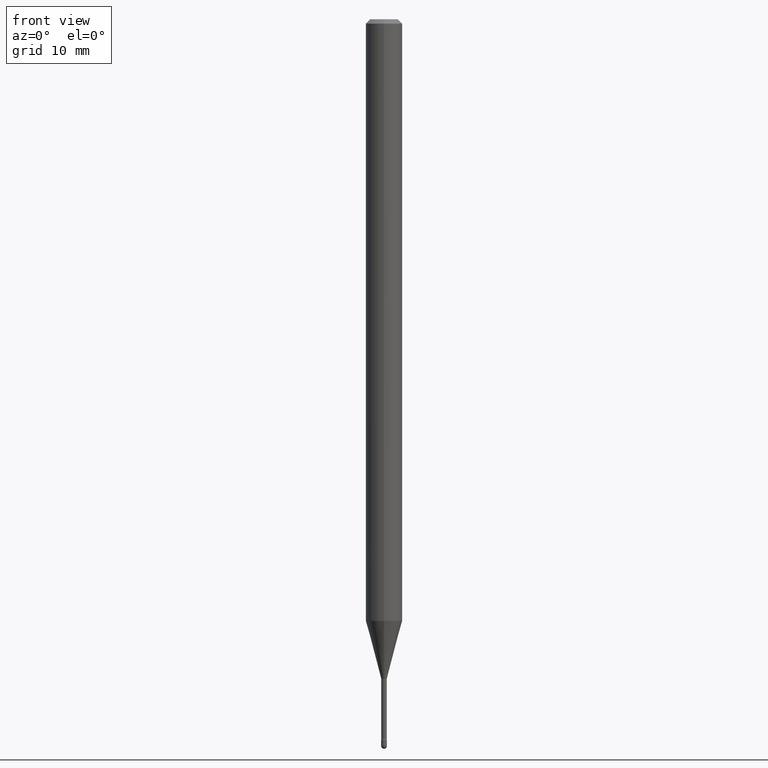
[diagram: clean part render]
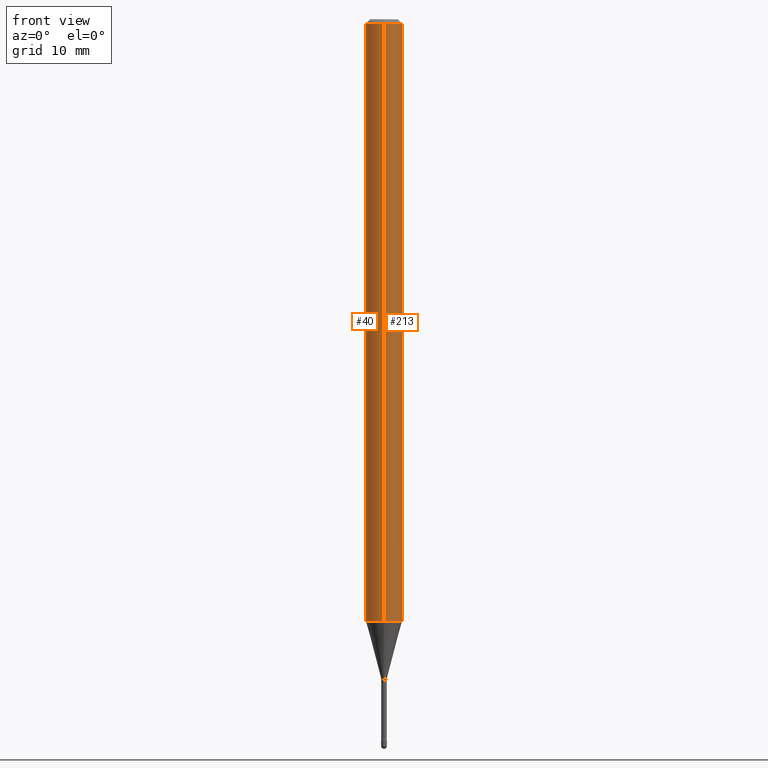
[diagram: same view with one multi-face feature highlighted, each face labeled with its STEP entity id]
A machine part, front view. The highlighted faces form ONE feature: a constant-radius fillet chain: 2 tangent blend faces with common blend radius 1.5875 mm. The faces share edges in the B-rep.
Their STEP definitions:
[1] entity #40 (Cylinder):
#11 = EDGE_CURVE ( 'NONE', #446, #427, #172, .T. ) ;
#20 = CARTESIAN_POINT ( 'NONE',  ( -1.169113584055446105E-44, 1.669184350826100908E-30, 4.780733988912460139E-16 ) ) ;
#29 = DIRECTION ( 'NONE',  ( -2.445514680004829847E-29, 3.491415644922369221E-15, 1.000000000000000000 ) ) ;
#40 = ADVANCED_FACE ( 'NONE', ( #192 ), #532, .T. ) ;
#42 = EDGE_CURVE ( 'NONE', #446, #165, #535, .T. ) ;
#45 = ORIENTED_EDGE ( 'NONE', *, *, #42, .F. ) ;
#63 = DIRECTION ( 'NONE',  ( -2.445514680004829566E-29, 3.491415644922369221E-15, 1.000000000000000000 ) ) ;
#72 = DIRECTION ( 'NONE',  ( -6.982962677686265922E-15, -1.000000000000000000, 3.491415644922369221E-15 ) ) ;
#84 = VECTOR ( 'NONE', #29, 39.37007874015748143 ) ;
#95 = EDGE_LOOP ( 'NONE', ( #45, #142, #273, #228 ) ) ;
#102 = CARTESIAN_POINT ( 'NONE',  ( -4.364351673553412809E-16, -0.06250000000000720257, -2.061828102118093309 ) ) ;
#142 = ORIENTED_EDGE ( 'NONE', *, *, #11, .T. ) ;
#144 = CARTESIAN_POINT ( 'NONE',  ( 3.668272020007264791E-31, -5.237123467383583267E-17, -0.01500000000000008271 ) ) ;
#165 = VERTEX_POINT ( 'NONE', #239 ) ;
#172 = CIRCLE ( 'NONE', #275, 0.06250000000000000000 ) ;
#192 = FACE_OUTER_BOUND ( 'NONE', #95, .T. ) ;
#205 = DIRECTION ( 'NONE',  ( -6.982962677686265922E-15, -1.000000000000000000, 4.370956789862821150E-15 ) ) ;
#228 = ORIENTED_EDGE ( 'NONE', *, *, #428, .F. ) ;
#236 = DIRECTION ( 'NONE',  ( -6.982962677686265922E-15, -1.000000000000000000, 3.483106191921935554E-15 ) ) ;
#239 = CARTESIAN_POINT ( 'NONE',  ( 4.440892098501133005E-16, 0.06249999999999995143, -0.01500000000000030129 ) ) ;
#245 = DIRECTION ( 'NONE',  ( -2.445514680004829847E-29, 3.491415644922369221E-15, 1.000000000000000000 ) ) ;
#253 = EDGE_CURVE ( 'NONE', #427, #343, #429, .T. ) ;
#273 = ORIENTED_EDGE ( 'NONE', *, *, #253, .T. ) ;
#275 = AXIS2_PLACEMENT_3D ( 'NONE', #308, #485, #205 ) ;
#283 = DIRECTION ( 'NONE',  ( -2.445514680004829566E-29, 3.491415644922369221E-15, 1.000000000000000000 ) ) ;
#308 = CARTESIAN_POINT ( 'NONE',  ( 5.042230891376295236E-29, -7.198698892875708228E-15, -2.061828102118093753 ) ) ;
#343 = VERTEX_POINT ( 'NONE', #456 ) ;
#360 = CARTESIAN_POINT ( 'NONE',  ( 4.440892098500625669E-16, 0.06250000000000000000, 2.598599210835979869E-16 ) ) ;
#385 = CIRCLE ( 'NONE', #443, 0.06250000000000000000 ) ;
#427 = VERTEX_POINT ( 'NONE', #102 ) ;
#428 = EDGE_CURVE ( 'NONE', #165, #343, #385, .T. ) ;
#429 = LINE ( 'NONE', #503, #84 ) ;
#431 = VECTOR ( 'NONE', #245, 39.37007874015748143 ) ;
#443 = AXIS2_PLACEMENT_3D ( 'NONE', #144, #63, #236 ) ;
#446 = VERTEX_POINT ( 'NONE', #534 ) ;
#456 = CARTESIAN_POINT ( 'NONE',  ( -4.364351673553912750E-16, -0.06250000000000005551, -0.01499999999999986587 ) ) ;
#485 = DIRECTION ( 'NONE',  ( -2.445514680004829566E-29, 3.491415644922369221E-15, 1.000000000000000000 ) ) ;
#503 = CARTESIAN_POINT ( 'NONE',  ( -4.364351673553916201E-16, -0.06250000000000000000, 6.962868766988940903E-16 ) ) ;
#531 = AXIS2_PLACEMENT_3D ( 'NONE', #20, #283, #72 ) ;
#532 = CYLINDRICAL_SURFACE ( 'NONE', #531, 0.06250000000000000000 ) ;
#534 = CARTESIAN_POINT ( 'NONE',  ( 4.440892098501128074E-16, 0.06249999999999279743, -2.061828102118093753 ) ) ;
#535 = LINE ( 'NONE', #360, #431 ) ;
[2] entity #213 (Cylinder):
#29 = DIRECTION ( 'NONE',  ( -2.445514680004829847E-29, 3.491415644922369221E-15, 1.000000000000000000 ) ) ;
#42 = EDGE_CURVE ( 'NONE', #446, #165, #535, .T. ) ;
#60 = DIRECTION ( 'NONE',  ( -2.445514680004829566E-29, 3.491415644922369221E-15, 1.000000000000000000 ) ) ;
#73 = DIRECTION ( 'NONE',  ( -6.982962677686265922E-15, -1.000000000000000000, 3.491415644922369221E-15 ) ) ;
#84 = VECTOR ( 'NONE', #29, 39.37007874015748143 ) ;
#102 = CARTESIAN_POINT ( 'NONE',  ( -4.364351673553412809E-16, -0.06250000000000720257, -2.061828102118093309 ) ) ;
#104 = EDGE_CURVE ( 'NONE', #343, #165, #127, .T. ) ;
#118 = AXIS2_PLACEMENT_3D ( 'NONE', #214, #167, #510 ) ;
#127 = CIRCLE ( 'NONE', #372, 0.06250000000000000000 ) ;
#165 = VERTEX_POINT ( 'NONE', #239 ) ;
#167 = DIRECTION ( 'NONE',  ( -2.445514680004829566E-29, 3.491415644922369221E-15, 1.000000000000000000 ) ) ;
#211 = ORIENTED_EDGE ( 'NONE', *, *, #289, .T. ) ;
#213 = ADVANCED_FACE ( 'NONE', ( #339 ), #426, .T. ) ;
#214 = CARTESIAN_POINT ( 'NONE',  ( 5.042230891376295236E-29, -7.198698892875708228E-15, -2.061828102118093753 ) ) ;
#234 = CARTESIAN_POINT ( 'NONE',  ( 3.668272020007264791E-31, -5.237123467383583267E-17, -0.01500000000000008271 ) ) ;
#239 = CARTESIAN_POINT ( 'NONE',  ( 4.440892098501133005E-16, 0.06249999999999995143, -0.01500000000000030129 ) ) ;
#245 = DIRECTION ( 'NONE',  ( -2.445514680004829847E-29, 3.491415644922369221E-15, 1.000000000000000000 ) ) ;
#253 = EDGE_CURVE ( 'NONE', #427, #343, #429, .T. ) ;
#257 = ORIENTED_EDGE ( 'NONE', *, *, #104, .F. ) ;
#289 = EDGE_CURVE ( 'NONE', #427, #446, #514, .T. ) ;
#290 = DIRECTION ( 'NONE',  ( -6.982962677686265922E-15, -1.000000000000000000, 3.483106191921935554E-15 ) ) ;
#300 = ORIENTED_EDGE ( 'NONE', *, *, #253, .F. ) ;
#339 = FACE_OUTER_BOUND ( 'NONE', #526, .T. ) ;
#343 = VERTEX_POINT ( 'NONE', #456 ) ;
#354 = AXIS2_PLACEMENT_3D ( 'NONE', #541, #552, #73 ) ;
#360 = CARTESIAN_POINT ( 'NONE',  ( 4.440892098500625669E-16, 0.06250000000000000000, 2.598599210835979869E-16 ) ) ;
#372 = AXIS2_PLACEMENT_3D ( 'NONE', #234, #60, #290 ) ;
#388 = ORIENTED_EDGE ( 'NONE', *, *, #42, .T. ) ;
#426 = CYLINDRICAL_SURFACE ( 'NONE', #354, 0.06250000000000000000 ) ;
#427 = VERTEX_POINT ( 'NONE', #102 ) ;
#429 = LINE ( 'NONE', #503, #84 ) ;
#431 = VECTOR ( 'NONE', #245, 39.37007874015748143 ) ;
#446 = VERTEX_POINT ( 'NONE', #534 ) ;
#456 = CARTESIAN_POINT ( 'NONE',  ( -4.364351673553912750E-16, -0.06250000000000005551, -0.01499999999999986587 ) ) ;
#503 = CARTESIAN_POINT ( 'NONE',  ( -4.364351673553916201E-16, -0.06250000000000000000, 6.962868766988940903E-16 ) ) ;
#510 = DIRECTION ( 'NONE',  ( -6.982962677686265922E-15, -1.000000000000000000, 4.370956789862821150E-15 ) ) ;
#514 = CIRCLE ( 'NONE', #118, 0.06250000000000000000 ) ;
#526 = EDGE_LOOP ( 'NONE', ( #211, #388, #257, #300 ) ) ;
#534 = CARTESIAN_POINT ( 'NONE',  ( 4.440892098501128074E-16, 0.06249999999999279743, -2.061828102118093753 ) ) ;
#535 = LINE ( 'NONE', #360, #431 ) ;
#541 = CARTESIAN_POINT ( 'NONE',  ( -1.169113584055446105E-44, 1.669184350826100908E-30, 4.780733988912460139E-16 ) ) ;
#552 = DIRECTION ( 'NONE',  ( -2.445514680004829566E-29, 3.491415644922369221E-15, 1.000000000000000000 ) ) ;